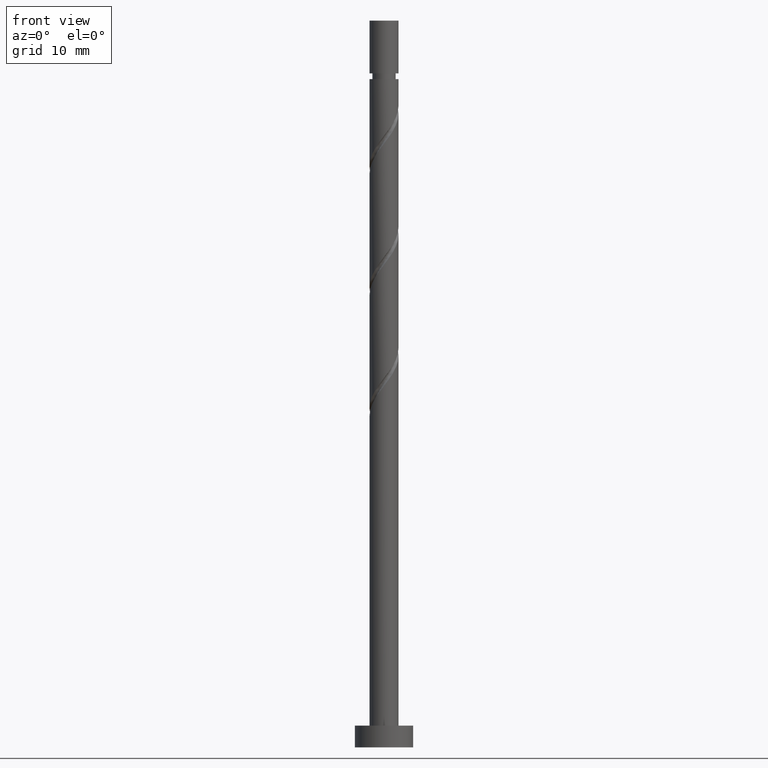
[diagram: clean part render]
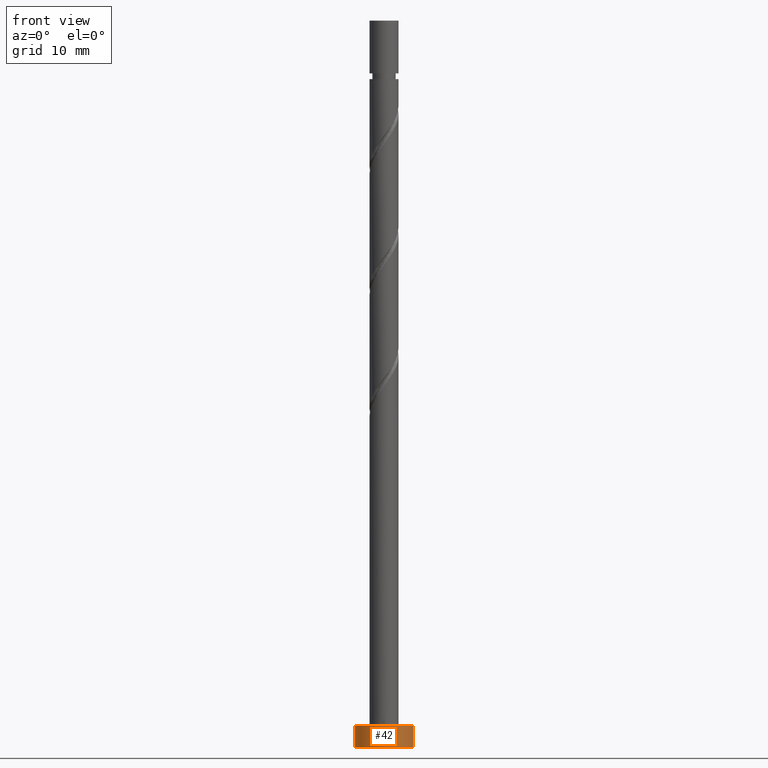
[diagram: same view with one face highlighted and labeled with its STEP entity id]
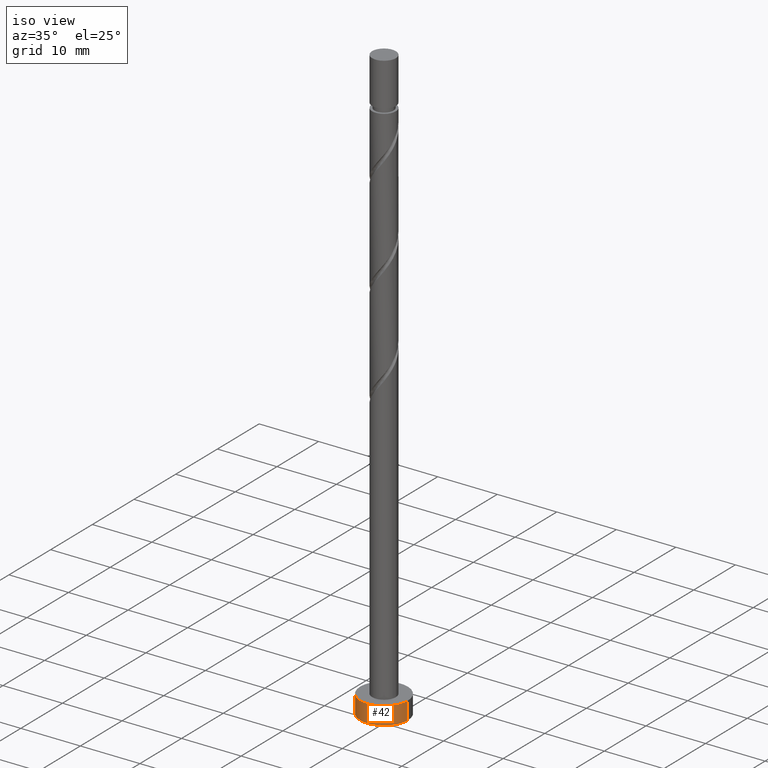
[diagram: same view with one face highlighted and labeled with its STEP entity id]
A machine part, front view. The second image highlights one B-rep face of the part: STEP entity #42.
A second angle (iso view) of the same face is appended — the face is thin or edge-on in the first view.
In plain terms, the highlighted cylindrical surface (edge-blend (fillet) strip) has radius 4 mm, axis along (-0, -0, -1).
Its self-contained STEP definition (entity closure, byte-faithful):
#42 = ADVANCED_FACE ( 'NONE', ( #679 ), #93, .T. ) ;
#85 = CARTESIAN_POINT ( 'NONE',  ( 0.000000000000000000, 0.000000000000000000, 3.000000000000000000 ) ) ;
#93 = CYLINDRICAL_SURFACE ( 'NONE', #1154, 4.000000000000000000 ) ;
#358 = ORIENTED_EDGE ( 'NONE', *, *, #1360, .T. ) ;
#447 = LINE ( 'NONE', #889, #1364 ) ;
#462 = VECTOR ( 'NONE', #1124, 1000.000000000000000 ) ;
#464 = VERTEX_POINT ( 'NONE', #539 ) ;
#488 = DIRECTION ( 'NONE',  ( 0.000000000000000000, 0.000000000000000000, 1.000000000000000000 ) ) ;
#539 = CARTESIAN_POINT ( 'NONE',  ( -4.000000000000000000, 0.000000000000000000, 0.000000000000000000 ) ) ;
#649 = EDGE_CURVE ( 'NONE', #800, #822, #447, .T. ) ;
#679 = FACE_OUTER_BOUND ( 'NONE', #1020, .T. ) ;
#742 = AXIS2_PLACEMENT_3D ( 'NONE', #1393, #488, #1156 ) ;
#760 = DIRECTION ( 'NONE',  ( -0.000000000000000000, -0.000000000000000000, -1.000000000000000000 ) ) ;
#766 = VERTEX_POINT ( 'NONE', #1012 ) ;
#770 = CIRCLE ( 'NONE', #742, 4.000000000000000000 ) ;
#800 = VERTEX_POINT ( 'NONE', #1473 ) ;
#822 = VERTEX_POINT ( 'NONE', #1486 ) ;
#889 = CARTESIAN_POINT ( 'NONE',  ( 4.000000000000000000, 4.898587196589412829E-16, 3.000000000000000000 ) ) ;
#901 = CARTESIAN_POINT ( 'NONE',  ( -4.000000000000000000, 0.000000000000000000, 3.000000000000000000 ) ) ;
#984 = ORIENTED_EDGE ( 'NONE', *, *, #649, .F. ) ;
#1004 = ORIENTED_EDGE ( 'NONE', *, *, #1476, .T. ) ;
#1012 = CARTESIAN_POINT ( 'NONE',  ( -4.000000000000000000, 0.000000000000000000, 3.000000000000000000 ) ) ;
#1020 = EDGE_LOOP ( 'NONE', ( #984, #1026, #358, #1004 ) ) ;
#1026 = ORIENTED_EDGE ( 'NONE', *, *, #1174, .F. ) ;
#1079 = DIRECTION ( 'NONE',  ( 0.000000000000000000, 0.000000000000000000, 1.000000000000000000 ) ) ;
#1124 = DIRECTION ( 'NONE',  ( -0.000000000000000000, -0.000000000000000000, -1.000000000000000000 ) ) ;
#1125 = CARTESIAN_POINT ( 'NONE',  ( 0.000000000000000000, 0.000000000000000000, 3.000000000000000000 ) ) ;
#1154 = AXIS2_PLACEMENT_3D ( 'NONE', #1125, #760, #1335 ) ;
#1156 = DIRECTION ( 'NONE',  ( 1.000000000000000000, 0.000000000000000000, 0.000000000000000000 ) ) ;
#1174 = EDGE_CURVE ( 'NONE', #766, #800, #1292, .T. ) ;
#1266 = AXIS2_PLACEMENT_3D ( 'NONE', #85, #1079, #1348 ) ;
#1292 = CIRCLE ( 'NONE', #1266, 4.000000000000000000 ) ;
#1335 = DIRECTION ( 'NONE',  ( -1.000000000000000000, 0.000000000000000000, 0.000000000000000000 ) ) ;
#1348 = DIRECTION ( 'NONE',  ( 1.000000000000000000, 0.000000000000000000, 0.000000000000000000 ) ) ;
#1360 = EDGE_CURVE ( 'NONE', #766, #464, #1368, .T. ) ;
#1364 = VECTOR ( 'NONE', #1375, 1000.000000000000000 ) ;
#1368 = LINE ( 'NONE', #901, #462 ) ;
#1375 = DIRECTION ( 'NONE',  ( -0.000000000000000000, -0.000000000000000000, -1.000000000000000000 ) ) ;
#1393 = CARTESIAN_POINT ( 'NONE',  ( 0.000000000000000000, 0.000000000000000000, 0.000000000000000000 ) ) ;
#1473 = CARTESIAN_POINT ( 'NONE',  ( 4.000000000000000000, 4.898587196589412829E-16, 3.000000000000000000 ) ) ;
#1476 = EDGE_CURVE ( 'NONE', #464, #822, #770, .T. ) ;
#1486 = CARTESIAN_POINT ( 'NONE',  ( 4.000000000000000000, 4.898587196589412829E-16, 0.000000000000000000 ) ) ;